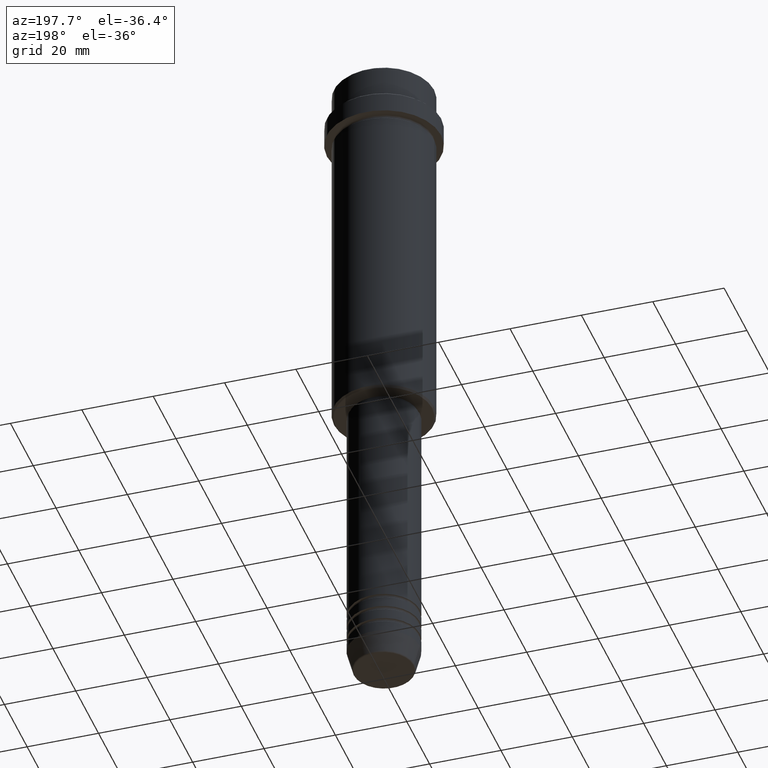
[diagram: clean part render]
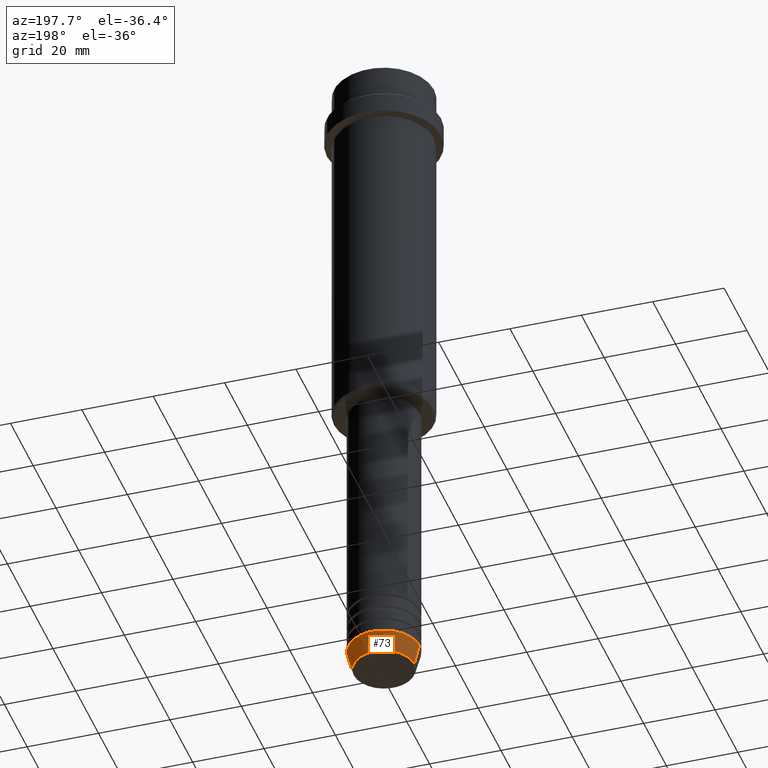
[diagram: same view with one face highlighted and labeled with its STEP entity id]
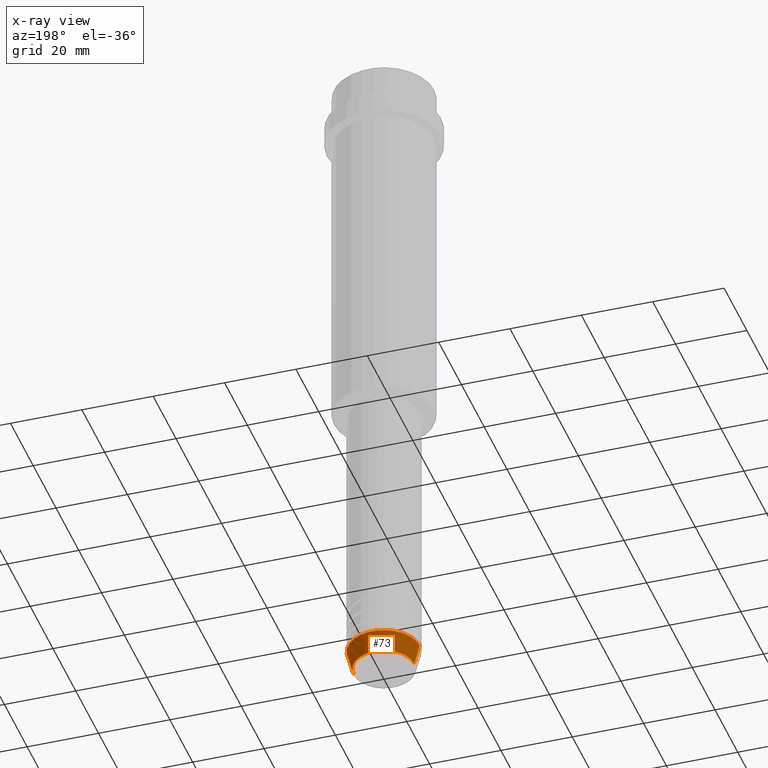
[diagram: x-ray of the same camera — body ghosted, the highlighted face saturated]
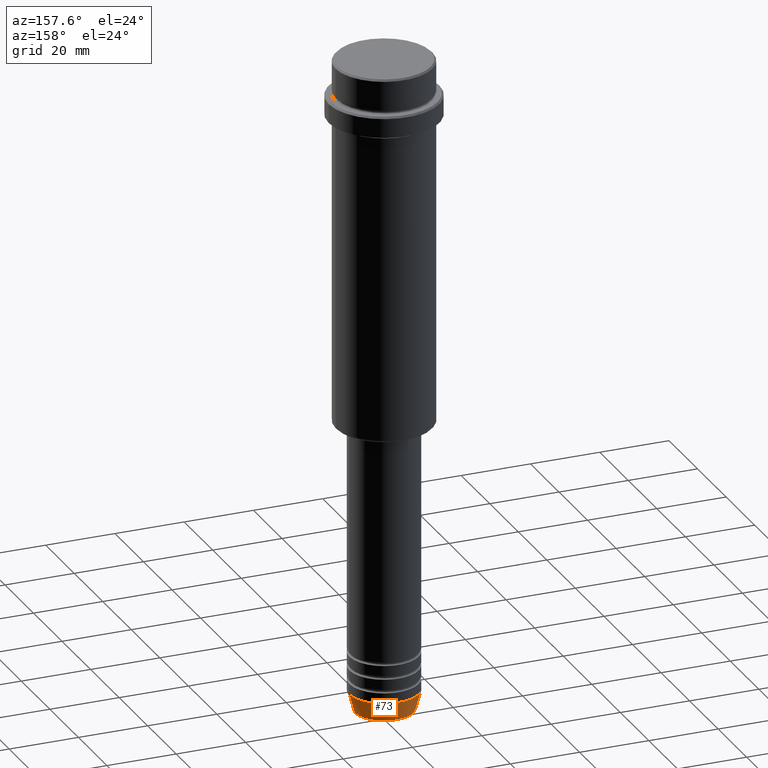
[diagram: same view with one face highlighted and labeled with its STEP entity id]
A machine part, auxiliary view. The second image highlights one B-rep face of the part: STEP entity #73.
The next image is the same camera in x-ray: the body ghosted, the highlighted face saturated — about 0% of this face is hidden behind the body in this view.
A second angle (auxiliary view) of the same face is appended — the face is thin or edge-on in the first view.
In plain terms, the highlighted conical surface has half-angle 15 deg.
Its self-contained STEP definition (entity closure, byte-faithful):
#56 = AXIS2_PLACEMENT_3D ( 'NONE', #1154, #189, #518 ) ;
#73 = ADVANCED_FACE ( 'NONE', ( #881 ), #1271, .T. ) ;
#135 = VERTEX_POINT ( 'NONE', #1151 ) ;
#182 = DIRECTION ( 'NONE',  ( -0.000000000000000000, -0.000000000000000000, 1.000000000000000000 ) ) ;
#189 = DIRECTION ( 'NONE',  ( -0.000000000000000000, -0.000000000000000000, 1.000000000000000000 ) ) ;
#218 = CIRCLE ( 'NONE', #585, 8.491604264568309191 ) ;
#242 = CIRCLE ( 'NONE', #56, 10.00000000000000000 ) ;
#253 = CARTESIAN_POINT ( 'NONE',  ( -8.491604264568309191, 1.132284198685156387E-15, -189.6294095225512706 ) ) ;
#270 = CARTESIAN_POINT ( 'NONE',  ( 8.491604264568309191, 0.000000000000000000, -189.6294095225512706 ) ) ;
#288 = VERTEX_POINT ( 'NONE', #270 ) ;
#309 = DIRECTION ( 'NONE',  ( -0.2588190451025211281, 3.169619151431769872E-17, 0.9659258262890680902 ) ) ;
#351 = ORIENTED_EDGE ( 'NONE', *, *, #436, .T. ) ;
#410 = DIRECTION ( 'NONE',  ( 0.2588190451025211281, 0.000000000000000000, 0.9659258262890680902 ) ) ;
#414 = ORIENTED_EDGE ( 'NONE', *, *, #932, .F. ) ;
#432 = EDGE_CURVE ( 'NONE', #135, #1211, #242, .T. ) ;
#436 = EDGE_CURVE ( 'NONE', #583, #1211, #933, .T. ) ;
#470 = DIRECTION ( 'NONE',  ( -0.000000000000000000, -0.000000000000000000, 1.000000000000000000 ) ) ;
#518 = DIRECTION ( 'NONE',  ( 1.000000000000000000, 0.000000000000000000, 0.000000000000000000 ) ) ;
#574 = CARTESIAN_POINT ( 'NONE',  ( 10.00000000000000000, 0.000000000000000000, -184.0000000000000000 ) ) ;
#575 = DIRECTION ( 'NONE',  ( 1.000000000000000000, 0.000000000000000000, 0.000000000000000000 ) ) ;
#583 = VERTEX_POINT ( 'NONE', #253 ) ;
#585 = AXIS2_PLACEMENT_3D ( 'NONE', #1269, #182, #1063 ) ;
#831 = CARTESIAN_POINT ( 'NONE',  ( -10.00000000000000000, 1.224646799147353256E-15, -184.0000000000000000 ) ) ;
#832 = ORIENTED_EDGE ( 'NONE', *, *, #1380, .T. ) ;
#881 = FACE_OUTER_BOUND ( 'NONE', #994, .T. ) ;
#932 = EDGE_CURVE ( 'NONE', #288, #135, #1206, .T. ) ;
#933 = LINE ( 'NONE', #831, #1275 ) ;
#976 = AXIS2_PLACEMENT_3D ( 'NONE', #1200, #470, #575 ) ;
#980 = ORIENTED_EDGE ( 'NONE', *, *, #432, .F. ) ;
#994 = EDGE_LOOP ( 'NONE', ( #832, #351, #980, #414 ) ) ;
#1063 = DIRECTION ( 'NONE',  ( 1.000000000000000000, 0.000000000000000000, 0.000000000000000000 ) ) ;
#1065 = CARTESIAN_POINT ( 'NONE',  ( -10.00000000000000000, 1.224646799147353256E-15, -184.0000000000000000 ) ) ;
#1151 = CARTESIAN_POINT ( 'NONE',  ( 10.00000000000000000, 0.000000000000000000, -184.0000000000000000 ) ) ;
#1154 = CARTESIAN_POINT ( 'NONE',  ( 0.000000000000000000, 0.000000000000000000, -184.0000000000000000 ) ) ;
#1162 = VECTOR ( 'NONE', #410, 1000.000000000000114 ) ;
#1200 = CARTESIAN_POINT ( 'NONE',  ( 0.000000000000000000, 0.000000000000000000, -184.0000000000000000 ) ) ;
#1206 = LINE ( 'NONE', #574, #1162 ) ;
#1211 = VERTEX_POINT ( 'NONE', #1065 ) ;
#1269 = CARTESIAN_POINT ( 'NONE',  ( 0.000000000000000000, 0.000000000000000000, -189.6294095225512706 ) ) ;
#1271 = CONICAL_SURFACE ( 'NONE', #976, 10.00000000000000000, 0.2617993877991498519 ) ;
#1275 = VECTOR ( 'NONE', #309, 1000.000000000000114 ) ;
#1380 = EDGE_CURVE ( 'NONE', #288, #583, #218, .T. ) ;